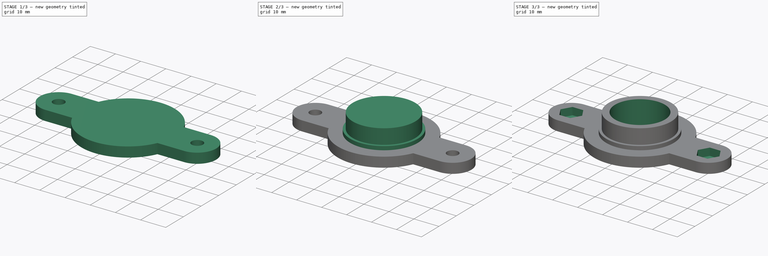
[diagram: build sequence overview — one tinted view per stage of 3, left to right]
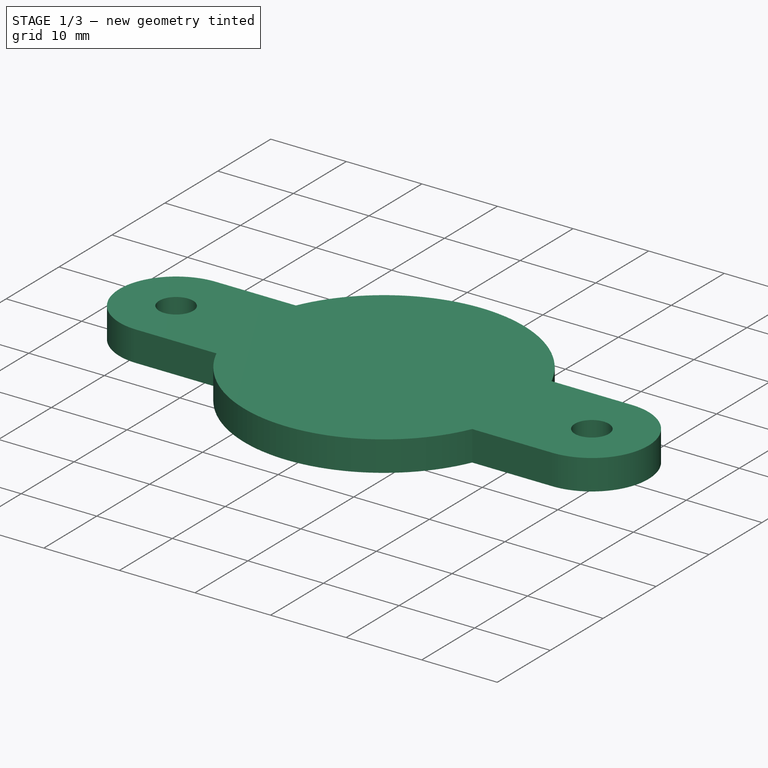
[diagram: stage 1 of 3 — iso view after this stage's code; geometry added in this stage tinted green]
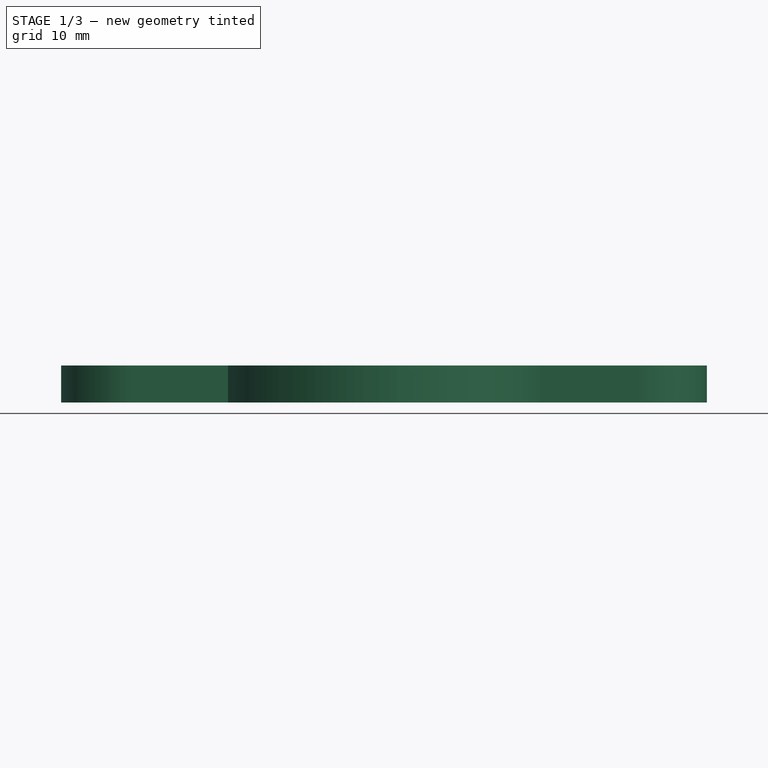
[diagram: stage 1 of 3 — front view after this stage's code; geometry added in this stage tinted green]
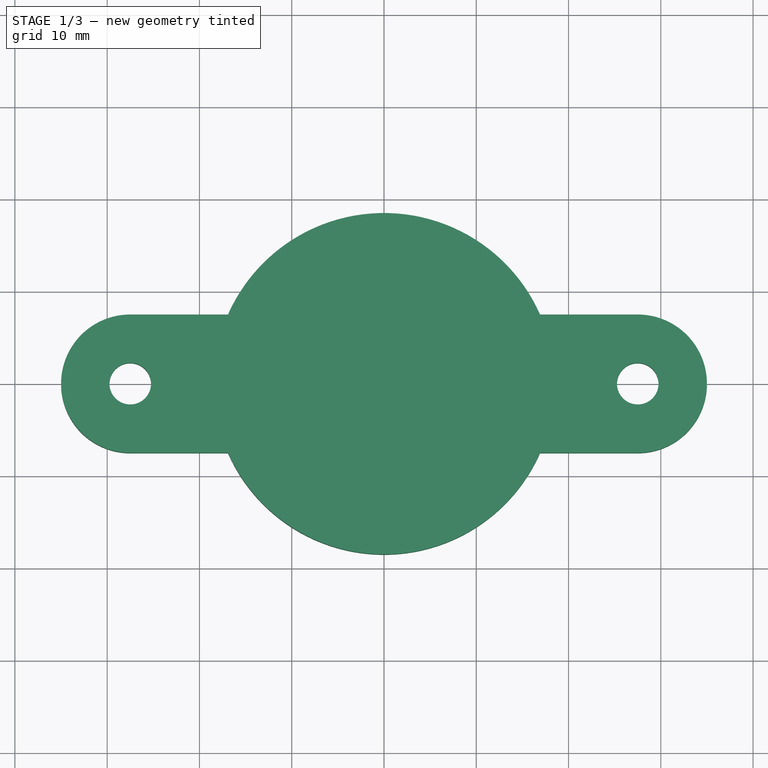
[diagram: stage 1 of 3 — top view after this stage's code; geometry added in this stage tinted green]
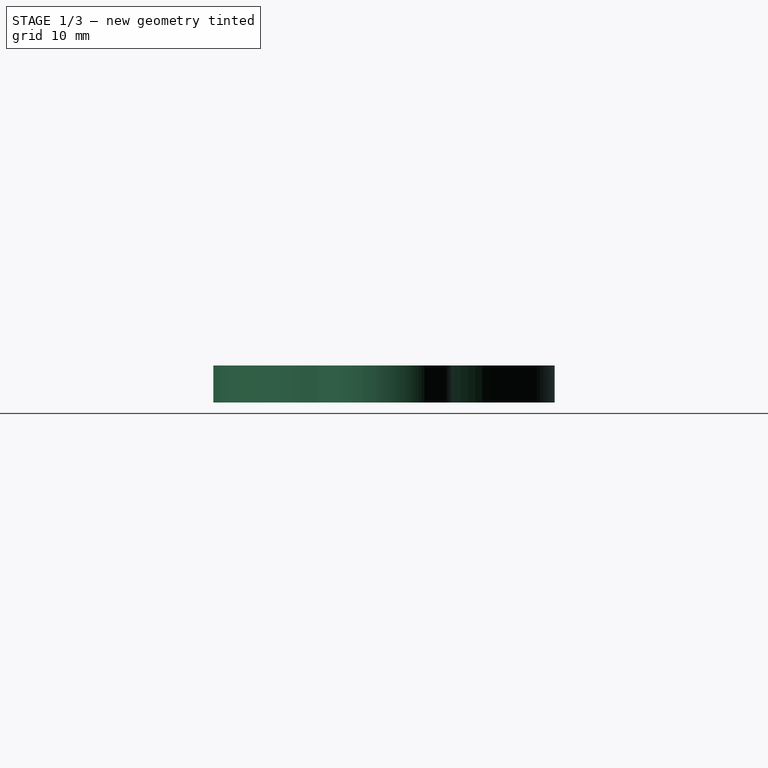
[diagram: stage 1 of 3 — right view after this stage's code; geometry added in this stage tinted green]
FCSTD DOCUMENT  (FreeCAD 0.21R33694 (Git))
Label: ring_gear_bearing_mount
License: All rights reserved
LicenseURL: http://en.wikipedia.org/wiki/All_rights_reserved
objects: Sketcher::SketchObject×5, Spreadsheet::Sheet×2, PartDesign::Pocket×2, PartDesign::Pad×1, PartDesign::Plane×1, PartDesign::Hole×1, PartDesign::Revolution×1, PartDesign::Body×1
note: 17 computed .brp shape members not serialized (recipe doc carries the construction recipe); baked Part::Feature solids carry a one-line shape summary decoded from their .brp

FEATURE [Spreadsheet::Sheet] Spreadsheet  label="settings"
  cells = A1='General settings; C1='Flange attachment settings; D1='mm; E1='Bearing settings; F1='mm; G1='Shaft hole settings; H1='mm; C2='Flange holes distance; D2(flange_hole_dist)=55; E2='Bearing spacer thickness; F2(bearing_spacer_T)=1.5; G2='Shaft hole diameter; H2(shaft_hole_dia)=20; A3='Wall thickness; B3(mount_wall_T)=0; C3='Flange hole diameter; D3(flange_hole_dia)=4.5; E3='Bearing thickness; F3(bearing_T)=6; A4='Bottom thickness; B4(mount_bottom_T)=2; C4='Flange hole depth; D4(flange_hole_D)=1; E4='Bearing diameter; F4(bearing_outer_dia)=37; C5='Flange hex dia; D5(flange_hole_hex_dia)=7.5; E5='Bearing inner diameter; F5(bearing_inner_dia)=25.1; C6='Flange hex depth; D6(flange_hex_D)=3; E6='Bearing spacer lip length; F6(bearing_spacer_lip_L)=1
FEATURE [Spreadsheet::Sheet] Spreadsheet001  label="calculations"
  cells = A1='General calculations; B1='mm; C1='Flange calculations; D1='mm; E1='Bearing calculations; A2='Total Thickness; B2(total_T)==Spreadsheet.bearing_spacer_T + <<settings>>.bearing_T; C2='total flange thickness; D2(total_flange_W)==<<settings>>.mount_wall_T + <<settings>>.flange_hole_hex_dia; E2='total bearing section thickness; F2(total_bearing_section_W)==Spreadsheet.bearing_outer_dia + <<settings>>.mount_wall_T * 2; A3='total plate thickness; B3(total_plate_T)==<<settings>>.flange_hole_D + <<settings>>.flange_hex_D; C3='flange hex depth; D3(total_hex_D)==total_T - <<settings>>.flange_hole_D; A11='Advanced settings; A12='Base hole size; B12(base_hole_size)=1
FEATURE [Sketcher::SketchObject] Sketch
  FullyConstrained = true
  MapMode = 5
  Support = -> [XY_Plane]
  expr: Constraints[14] = Spreadsheet001.total_flange_W
  expr: Constraints[2] = <<settings>>.flange_hole_dist
  expr: Constraints[33] = <<calculations>>.total_bearing_section_W
  sketch-geometry (14):
    g0: GeomPoint X=-27.5 Y=0 Z=0
    g1: GeomPoint X=27.5 Y=0 Z=0
    g2: ArcOfCircle CenterX=-27.5 CenterY=0 CenterZ=0 NormalX=0 NormalY=0 NormalZ=1 AngleXU=0 Radius=7.5 StartAngle=1.5708 EndAngle=4.71239
    g3: ArcOfCircle CenterX=27.5 CenterY=0 CenterZ=0 NormalX=0 NormalY=0 NormalZ=1 AngleXU=0 Radius=7.5 StartAngle=4.71239 EndAngle=7.85398
    g4: LineSegment StartX=-27.5 StartY=7.5 StartZ=0 EndX=-27.5 EndY=-7.5 EndZ=0
    g5: LineSegment StartX=27.5 StartY=7.5 StartZ=0 EndX=27.5 EndY=-7.5 EndZ=0
    g6: LineSegment StartX=-16.9115 StartY=7.5 StartZ=0 EndX=16.9115 EndY=-7.5 EndZ=0
    g7: LineSegment StartX=16.9115 StartY=7.5 StartZ=0 EndX=-16.9115 EndY=-7.5 EndZ=0
    g8: LineSegment StartX=-27.5 StartY=7.5 StartZ=0 EndX=-16.9115 EndY=7.5 EndZ=0
    g9: LineSegment StartX=27.5 StartY=7.5 StartZ=0 EndX=16.9115 EndY=7.5 EndZ=0
    g10: LineSegment StartX=27.5 StartY=-7.5 StartZ=0 EndX=16.9115 EndY=-7.5 EndZ=0
    g11: LineSegment StartX=-16.9115 StartY=-7.5 StartZ=0 EndX=-27.5 EndY=-7.5 EndZ=0
    g12: ArcOfCircle CenterX=0 CenterY=0 CenterZ=0 NormalX=0 NormalY=0 NormalZ=1 AngleXU=0 Radius=18.5 StartAngle=0.417422 EndAngle=2.72417
    g13: ArcOfCircle CenterX=0 CenterY=0 CenterZ=0 NormalX=0 NormalY=0 NormalZ=1 AngleXU=0 Radius=18.5 StartAngle=3.55901 EndAngle=5.86576
  constraints (34):
    c: PointOnObject(g0,g-1)
    c: Symmetric(g0,g1,g-1)
    c: DistanceX(g0,g1) = 55
    c: Coincident(g2,g0)
    c: Coincident(g3,g1)
    c: Coincident(g4,g2)
    c: Coincident(g4,g2)
    c: Vertical(g4)
    c: PointOnObject(g2,g4)
    c: Coincident(g5,g3)
    c: Coincident(g5,g3)
    c: Vertical(g5)
    c: PointOnObject(g3,g5)
    c: Equal(g4,g5)
    c: DistanceY(g2,g2) = 7.5
    c: Horizontal(g6,g2)
    c: Coincident(g8,g2)
    c: Coincident(g8,g6)
    c: Coincident(g9,g3)
    c: Coincident(g9,g7)
    c: Coincident(g10,g3)
    c: Coincident(g10,g6)
    c: Coincident(g11,g7)
    c: Coincident(g11,g2)
    c: Coincident(g12,g8)
    c: Coincident(g12,g9)
    c: Coincident(g13,g12)
    c: Coincident(g13,g10)
    c: Horizontal(g9)
    c: Horizontal(g10)
    c: Coincident(g12,g-1)
    c: Coincident(g11,g13)
    c: Symmetric(g9,g11,g12)
    c: Distance(g6) = 37
FEATURE [PartDesign::Pad] Pad  label="mount_body"
  Direction = (0,0,1)
  Length = 4
  Length2 = 10
  Profile = -> Sketch
  ReferenceAxis = -> Sketch [N_Axis]
  Type = 0
  expr: Length = <<calculations>>.total_plate_T
FEATURE [PartDesign::Plane] DatumPlane  label="plane_top"
  AttachmentOffset = pos=(0,0,4) rot=(0,0,1;0rad)
  Length = 81.7135
  MapMode = 5
  Placement = pos=(0,0,4) rot=(0,0,1;0rad)
  ResizeMode = 0
  Support = -> [XY_Plane]
  Width = 61.8229
  expr: .AttachmentOffset.Base.z = <<calculations>>.total_plate_T
FEATURE [Sketcher::SketchObject] Sketch001
  FullyConstrained = true
  MapMode = 5
  Placement = pos=(0,0,4) rot=(0,0,1;0rad)
  Support = -> [DatumPlane]
  expr: Constraints[2] = <<settings>>.flange_hole_dist
  expr: Constraints[4] = <<calculations>>.base_hole_size
  sketch-geometry (2):
    g0: Circle CenterX=-27.5 CenterY=0 CenterZ=0 NormalX=0 NormalY=0 NormalZ=1 AngleXU=0 Radius=0.5
    g1: Circle CenterX=27.5 CenterY=0 CenterZ=0 NormalX=0 NormalY=0 NormalZ=1 AngleXU=0 Radius=0.5
  constraints (5):
    c: PointOnObject(g0,g-1)
    c: Symmetric(g0,g1,g-1)
    c: DistanceX(g0,g1) = 55
    c: Equal(g0,g1)
    c: Diameter(g0) = 1
FEATURE [PartDesign::Hole] Hole  label="mounting_hole"
  BaseFeature = -> Pad
  CustomThreadClearance = 0
  Depth = 217.504
  DepthType = 1
  Diameter = 4.5
  DrillForDepth = false
  DrillPoint = 1
  DrillPointAngle = 118
  HoleCutCountersinkAngle = 90
  HoleCutCustomValues = false
  HoleCutDepth = 0
  HoleCutDiameter = 6.1
  HoleCutType = 0
  ModelThread = false
  Profile = -> Sketch001
  Tapered = false
  TaperedAngle = 90
  ThreadClass = 0
  ThreadDepth = 217.504
  ThreadDepthType = 0
  ThreadDirection = 0
  ThreadFit = 0
  ThreadSize = 0
  ThreadType = 0
  Threaded = false
  UseCustomThreadClearance = false
  expr: Diameter = <<settings>>.flange_hole_dia
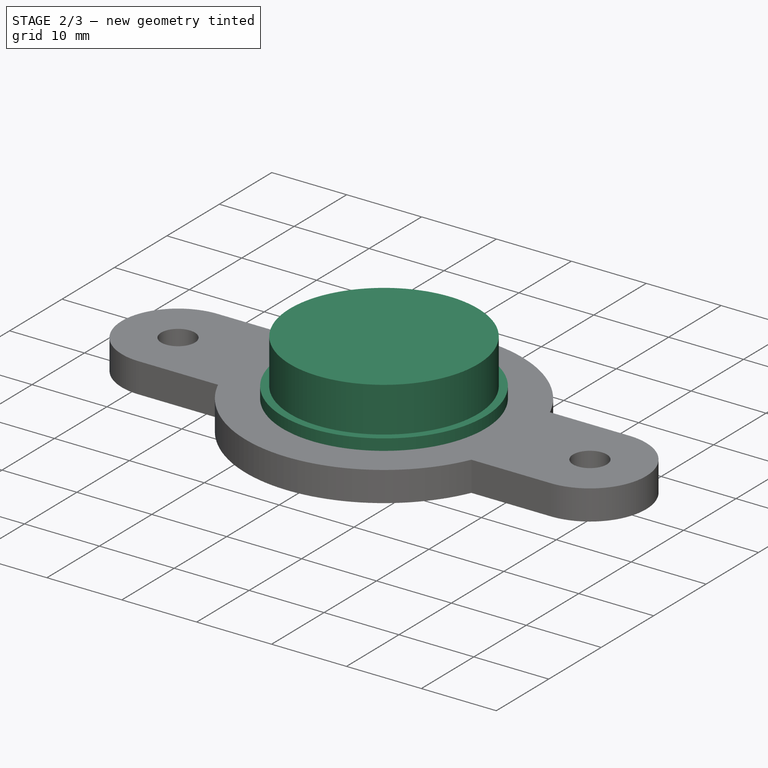
[diagram: stage 2 of 3 — iso view after this stage's code; geometry added in this stage tinted green]
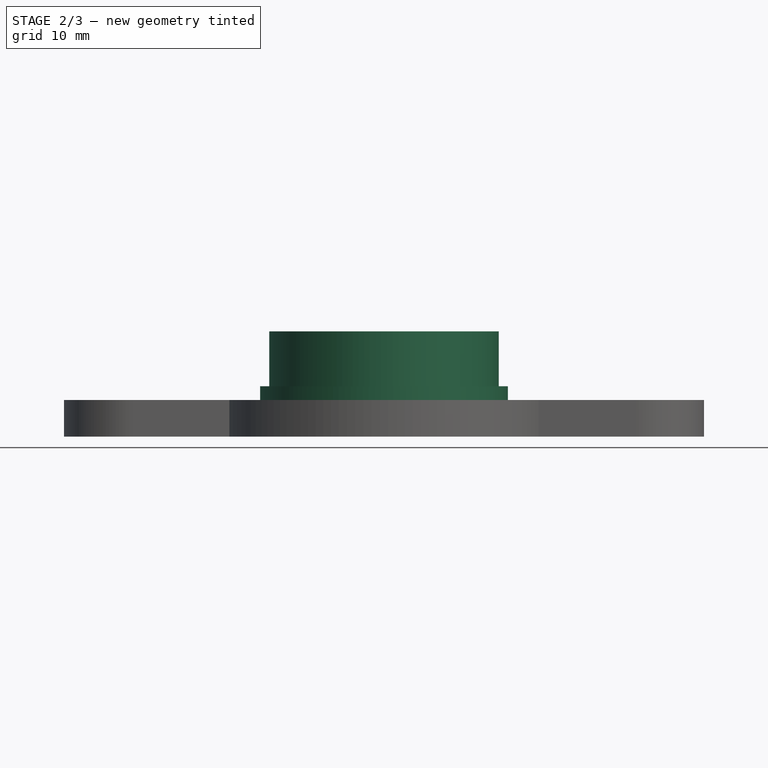
[diagram: stage 2 of 3 — front view after this stage's code; geometry added in this stage tinted green]
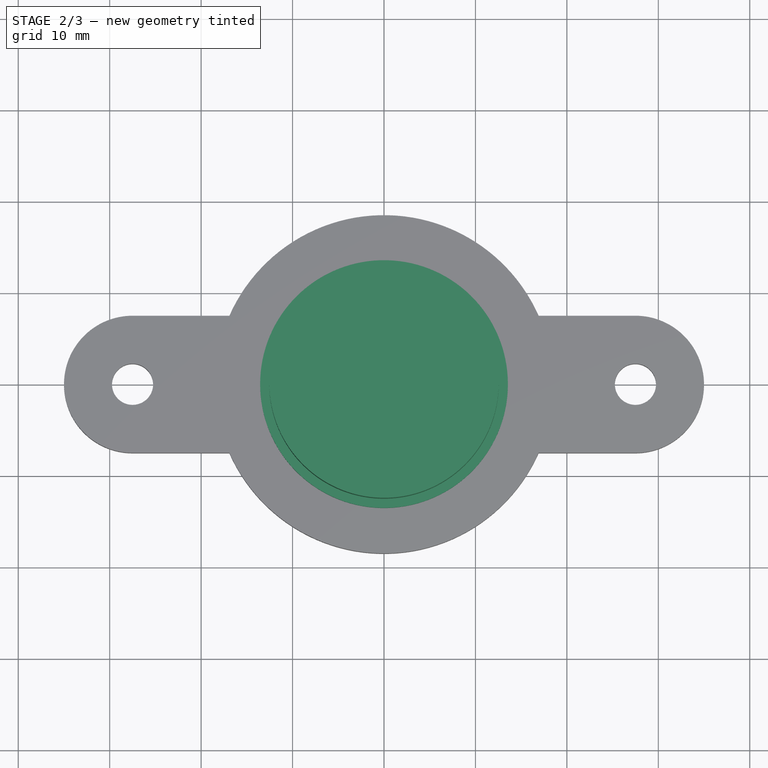
[diagram: stage 2 of 3 — top view after this stage's code; geometry added in this stage tinted green]
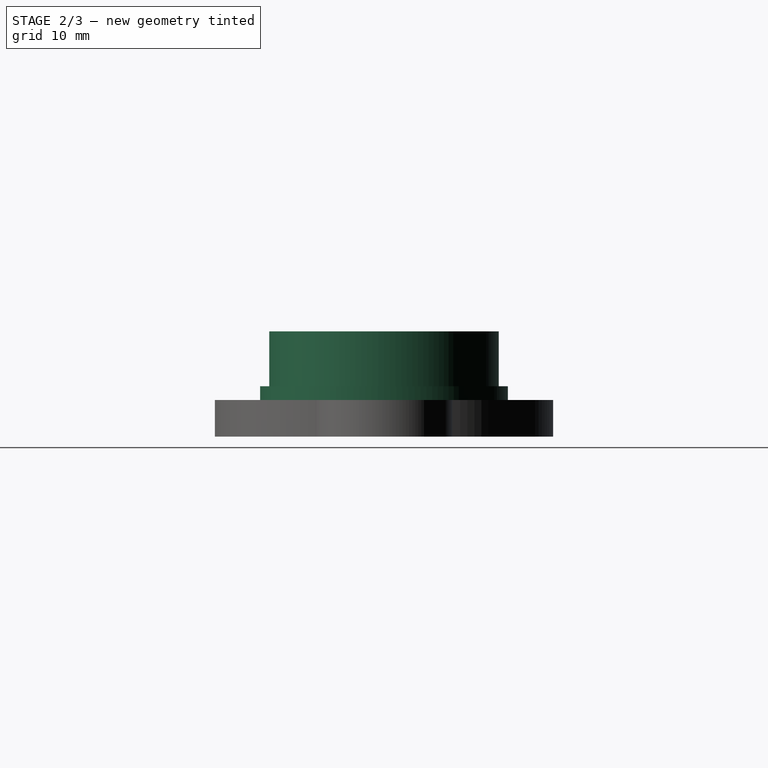
[diagram: stage 2 of 3 — right view after this stage's code; geometry added in this stage tinted green]
FEATURE [Sketcher::SketchObject] Sketch002
  FullyConstrained = true
  MapMode = 5
  Support = -> [XY_Plane]
  expr: Constraints[1] = <<settings>>.shaft_hole_dia
  sketch-geometry (1):
    g0: Circle CenterX=0 CenterY=0 CenterZ=0 NormalX=0 NormalY=0 NormalZ=1 AngleXU=0 Radius=10
  constraints (2):
    c: Coincident(g0,g-1)
    c: Diameter(g0) = 20
FEATURE [Sketcher::SketchObject] Sketch003
  FullyConstrained = true
  MapMode = 5
  Placement = pos=(0,0,0) rot=(1,0,0;1.5708rad)
  Support = -> [XZ_Plane]
  expr: Constraints[12] = <<calculations>>.total_plate_T
  expr: Constraints[13] = <<settings>>.bearing_spacer_T
  expr: Constraints[15] = <<settings>>.bearing_T
  expr: Constraints[16] = <<settings>>.bearing_inner_dia / 2
  expr: Constraints[17] = <<settings>>.bearing_inner_dia / 2 + <<settings>>.bearing_spacer_lip_L
  sketch-geometry (6):
    g0: LineSegment StartX=0 StartY=4 StartZ=0 EndX=-13.55 EndY=4 EndZ=0
    g1: LineSegment StartX=-13.55 StartY=4 StartZ=0 EndX=-13.55 EndY=5.5 EndZ=0
    g2: LineSegment StartX=-13.55 StartY=5.5 StartZ=0 EndX=-12.55 EndY=5.5 EndZ=0
    g3: LineSegment StartX=-12.55 StartY=5.5 StartZ=0 EndX=-12.55 EndY=11.5 EndZ=0
    g4: LineSegment StartX=-12.55 StartY=11.5 StartZ=0 EndX=0 EndY=11.5 EndZ=0
    g5: LineSegment StartX=0 StartY=11.5 StartZ=0 EndX=0 EndY=4 EndZ=0
  constraints (18):
    c: PointOnObject(g0,g-2)
    c: Horizontal(g0)
    c: Coincident(g0,g1)
    c: Coincident(g1,g2)
    c: Horizontal(g2)
    c: Coincident(g2,g3)
    c: Vertical(g3)
    c: Coincident(g3,g4)
    c: Horizontal(g4)
    c: Coincident(g4,g5)
    c: Coincident(g5,g0)
    c: Vertical(g5)
    c: DistanceY(g-1,g0) = 4
    c: DistanceY(g0,g1) = 1.5
    c: Vertical(g1)
    c: DistanceY(g3,g3) = 6
    c: DistanceX(g4,g4) = 12.55
    c: DistanceX(g0,g0) = 13.55
FEATURE [PartDesign::Revolution] Revolution  label="bearing_holder"
  Angle = 360
  Axis = (0,-2e-16,1)
  Base = (0,0,0)
  BaseFeature = -> Hole
  Profile = -> Sketch003
  ReferenceAxis = -> Sketch003 [V_Axis]
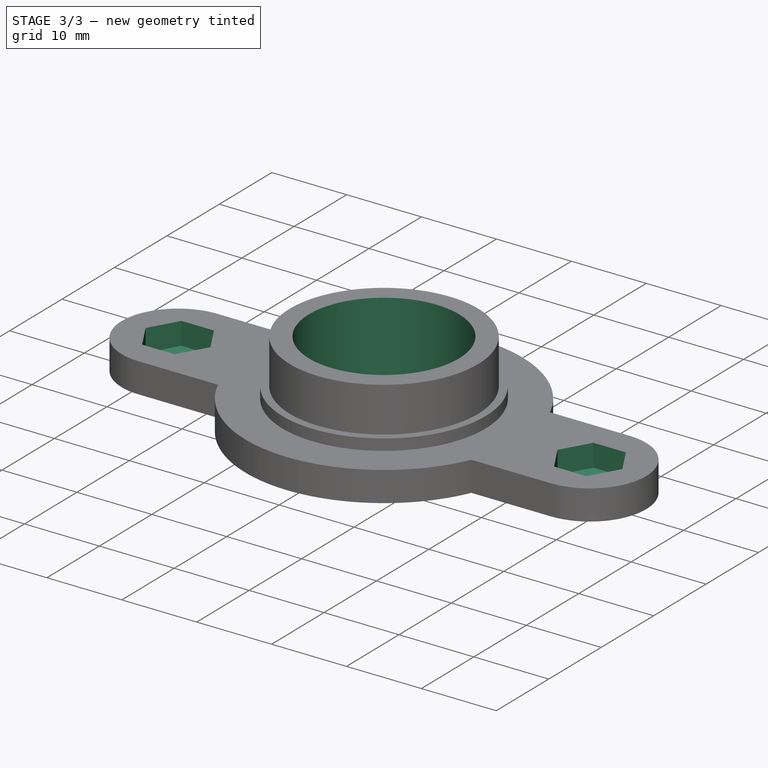
[diagram: stage 3 of 3 — iso view after this stage's code; geometry added in this stage tinted green]
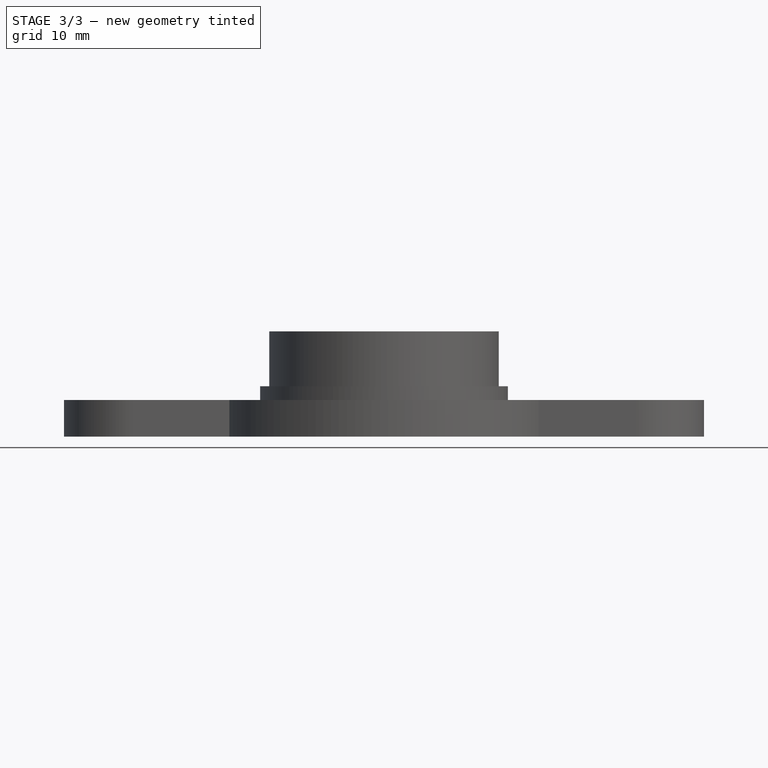
[diagram: stage 3 of 3 — front view after this stage's code; geometry added in this stage tinted green]
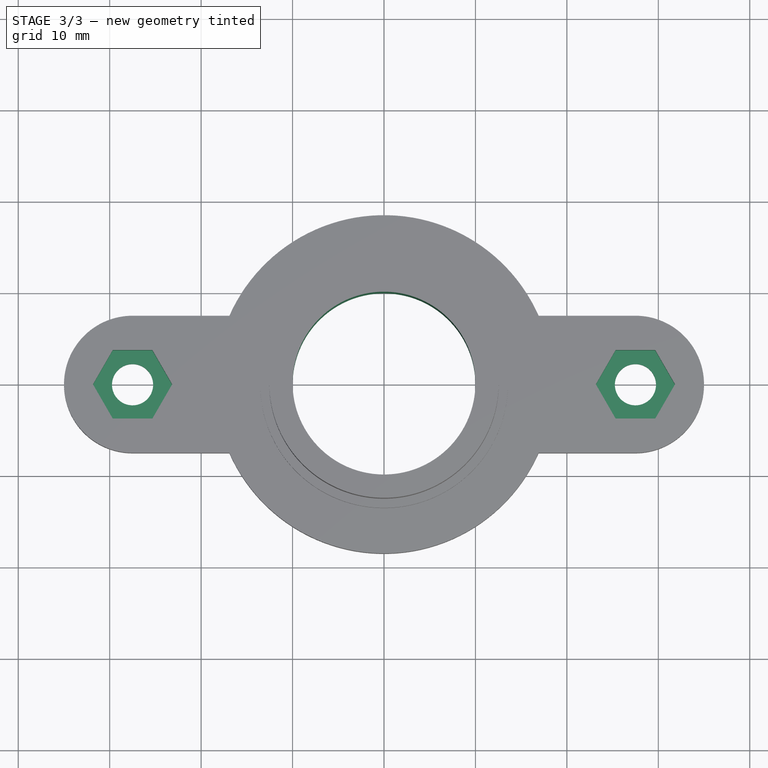
[diagram: stage 3 of 3 — top view after this stage's code; geometry added in this stage tinted green]
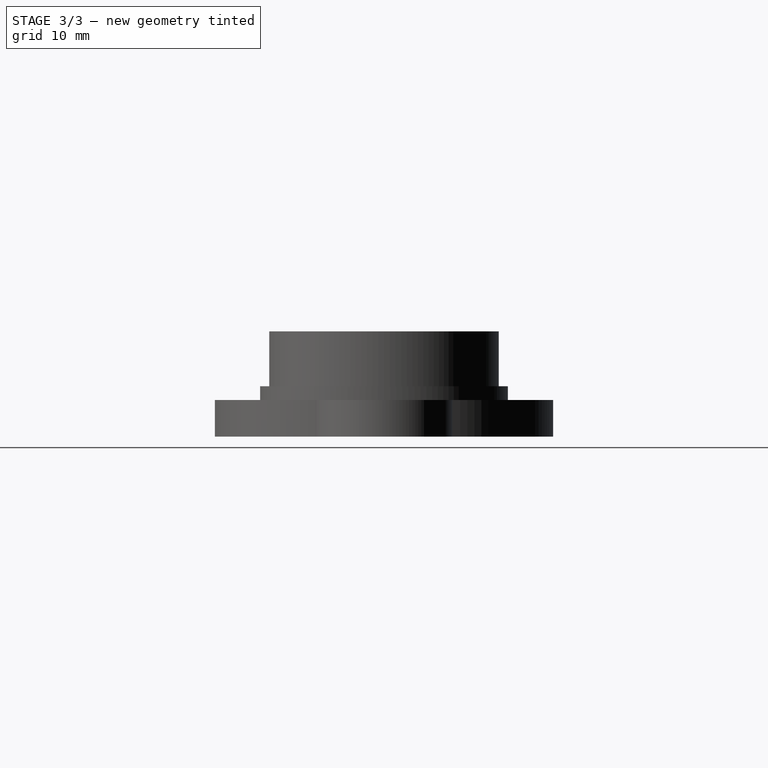
[diagram: stage 3 of 3 — right view after this stage's code; geometry added in this stage tinted green]
FEATURE [Sketcher::SketchObject] Sketch004
  FullyConstrained = true
  MapMode = 5
  Placement = pos=(0,0,4) rot=(0,0,1;0rad)
  Support = -> [DatumPlane]
  expr: Constraints[39] = <<settings>>.flange_hole_dist
  expr: Constraints[40] = <<settings>>.flange_hole_hex_dia
  sketch-geometry (14):
    g0: LineSegment StartX=-23.1699 StartY=0 StartZ=0 EndX=-25.3349 EndY=3.75 EndZ=0
    g1: LineSegment StartX=-25.3349 StartY=3.75 StartZ=0 EndX=-29.6651 EndY=3.75 EndZ=0
    g2: LineSegment StartX=-29.6651 StartY=3.75 StartZ=0 EndX=-31.8301 EndY=5.11e-14 EndZ=0
    g3: LineSegment StartX=-31.8301 StartY=5.11e-14 StartZ=0 EndX=-29.6651 EndY=-3.75 EndZ=0
    g4: LineSegment StartX=-29.6651 StartY=-3.75 StartZ=0 EndX=-25.3349 EndY=-3.75 EndZ=0
    g5: LineSegment StartX=-25.3349 StartY=-3.75 StartZ=0 EndX=-23.1699 EndY=0 EndZ=0
    g6: Circle CenterX=-27.5 CenterY=0 CenterZ=0 NormalX=0 NormalY=0 NormalZ=1 AngleXU=0 Radius=4.33013
    g7: LineSegment StartX=31.8301 StartY=0 StartZ=0 EndX=29.6651 EndY=3.75 EndZ=0
    g8: LineSegment StartX=29.6651 StartY=3.75 StartZ=0 EndX=25.3349 EndY=3.75 EndZ=0
    g9: LineSegment StartX=25.3349 StartY=3.75 StartZ=0 EndX=23.1699 EndY=-4e-16 EndZ=0
    g10: LineSegment StartX=23.1699 StartY=-4e-16 StartZ=0 EndX=25.3349 EndY=-3.75 EndZ=0
    g11: LineSegment StartX=25.3349 StartY=-3.75 StartZ=0 EndX=29.6651 EndY=-3.75 EndZ=0
    g12: LineSegment StartX=29.6651 StartY=-3.75 StartZ=0 EndX=31.8301 EndY=0 EndZ=0
    g13: Circle CenterX=27.5 CenterY=0 CenterZ=0 NormalX=0 NormalY=0 NormalZ=1 AngleXU=0 Radius=4.33013
  constraints (33):
    c: Coincident(g0,g1)
    c: Coincident(g1,g2)
    c: Coincident(g2,g3)
    c: Coincident(g3,g4)
    c: Coincident(g4,g5)
    c: Coincident(g5,g0)
    c: Equal(g0, g1-g5) x5
    c: PointOnObject(g0,g6)
    c: PointOnObject(g1,g6)
    c: PointOnObject(g2,g6)
    c: PointOnObject(g3,g6)
    c: PointOnObject(g4,g6)
    c: PointOnObject(g5,g6)
    c: PointOnObject(g6,g-1)
    c: PointOnObject(g5,g-1)
    c: Coincident(g7,g8)
    c: Coincident(g8,g9)
    c: Coincident(g9,g10)
    c: Coincident(g10,g11)
    c: Coincident(g11,g12)
    c: Coincident(g12,g7)
    c: Equal(g7, g8-g12) x5
    c: PointOnObject(g7,g13)
    c: PointOnObject(g8,g13)
    c: PointOnObject(g9,g13)
    c: PointOnObject(g10,g13)
    c: PointOnObject(g11,g13)
    c: PointOnObject(g12,g13)
    c: PointOnObject(g12,g-1)
    c: Symmetric(g13,g6,g-1)
    c: Equal(g13,g6)
    c: DistanceX(g6,g13) = 55
    c: DistanceY(g4,g0) = 7.5
FEATURE [PartDesign::Pocket] Pocket001  label="hex_holes"
  BaseFeature = -> Revolution
  Direction = (0,0,-1)
  Length = 3
  Length2 = 5
  Profile = -> Sketch004
  ReferenceAxis = -> Sketch004 [N_Axis]
  Type = 0
  expr: Length = <<settings>>.flange_hex_D
FEATURE [PartDesign::Pocket] Pocket  label="shaft hole"
  BaseFeature = -> Pocket001
  Direction = (0,0,-1)
  Length = 5
  Length2 = 5
  Profile = -> Sketch002
  ReferenceAxis = -> Sketch002 [N_Axis]
  Reversed = true
  Type = 1
FEATURE [PartDesign::Body] Body
  Group = -> [Sketch,Pad,DatumPlane,Sketch001,Hole,Sketch002,Sketch003,Revolution,Sketch004,Pocket001,Pocket]
  Origin = -> Origin
  Tip = -> Pocket
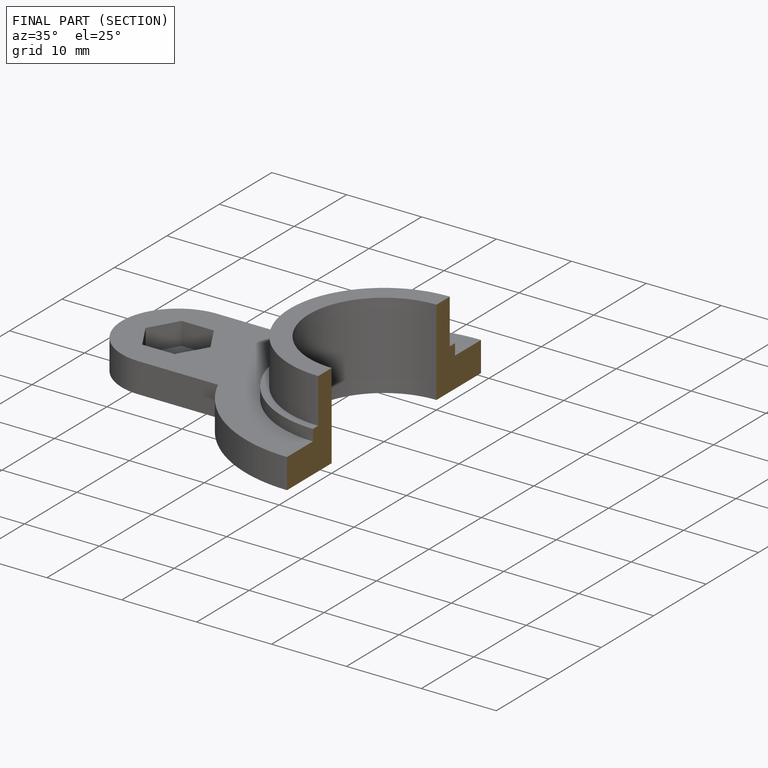
[diagram: finished part — half-section view (interior)]
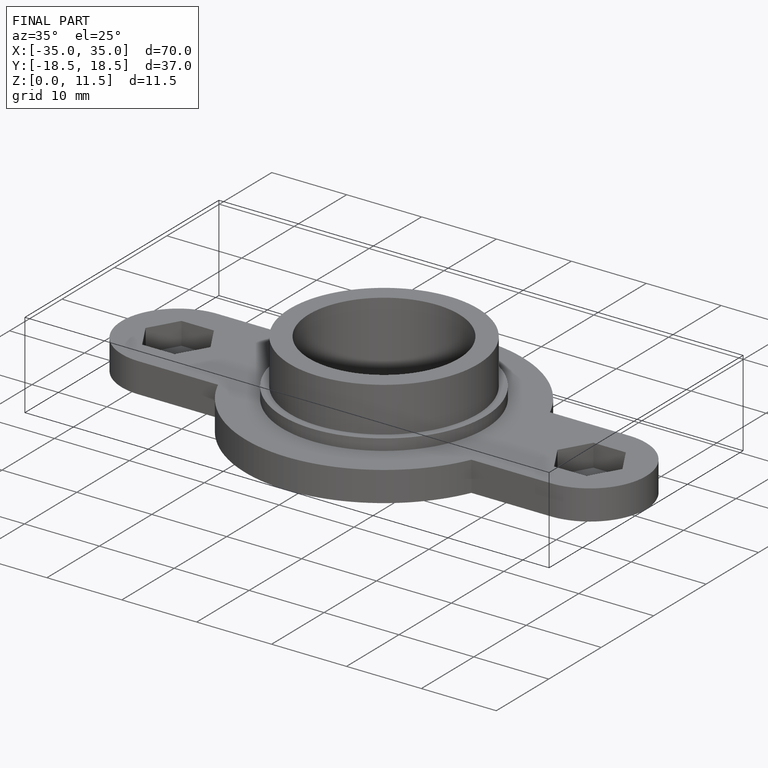
[diagram: finished part — iso view with bounding-box wireframe]
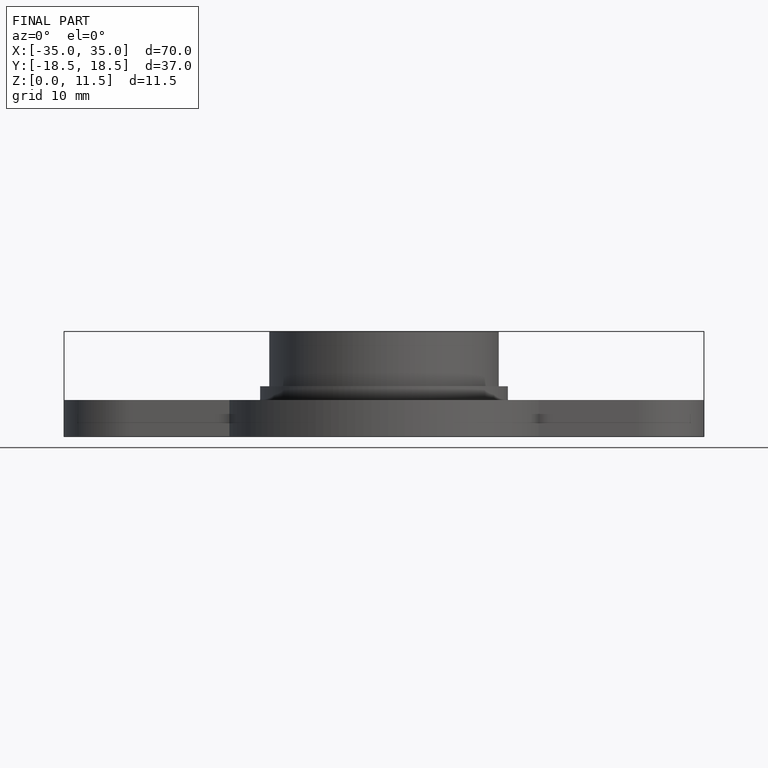
[diagram: finished part — front view with bounding-box wireframe]
